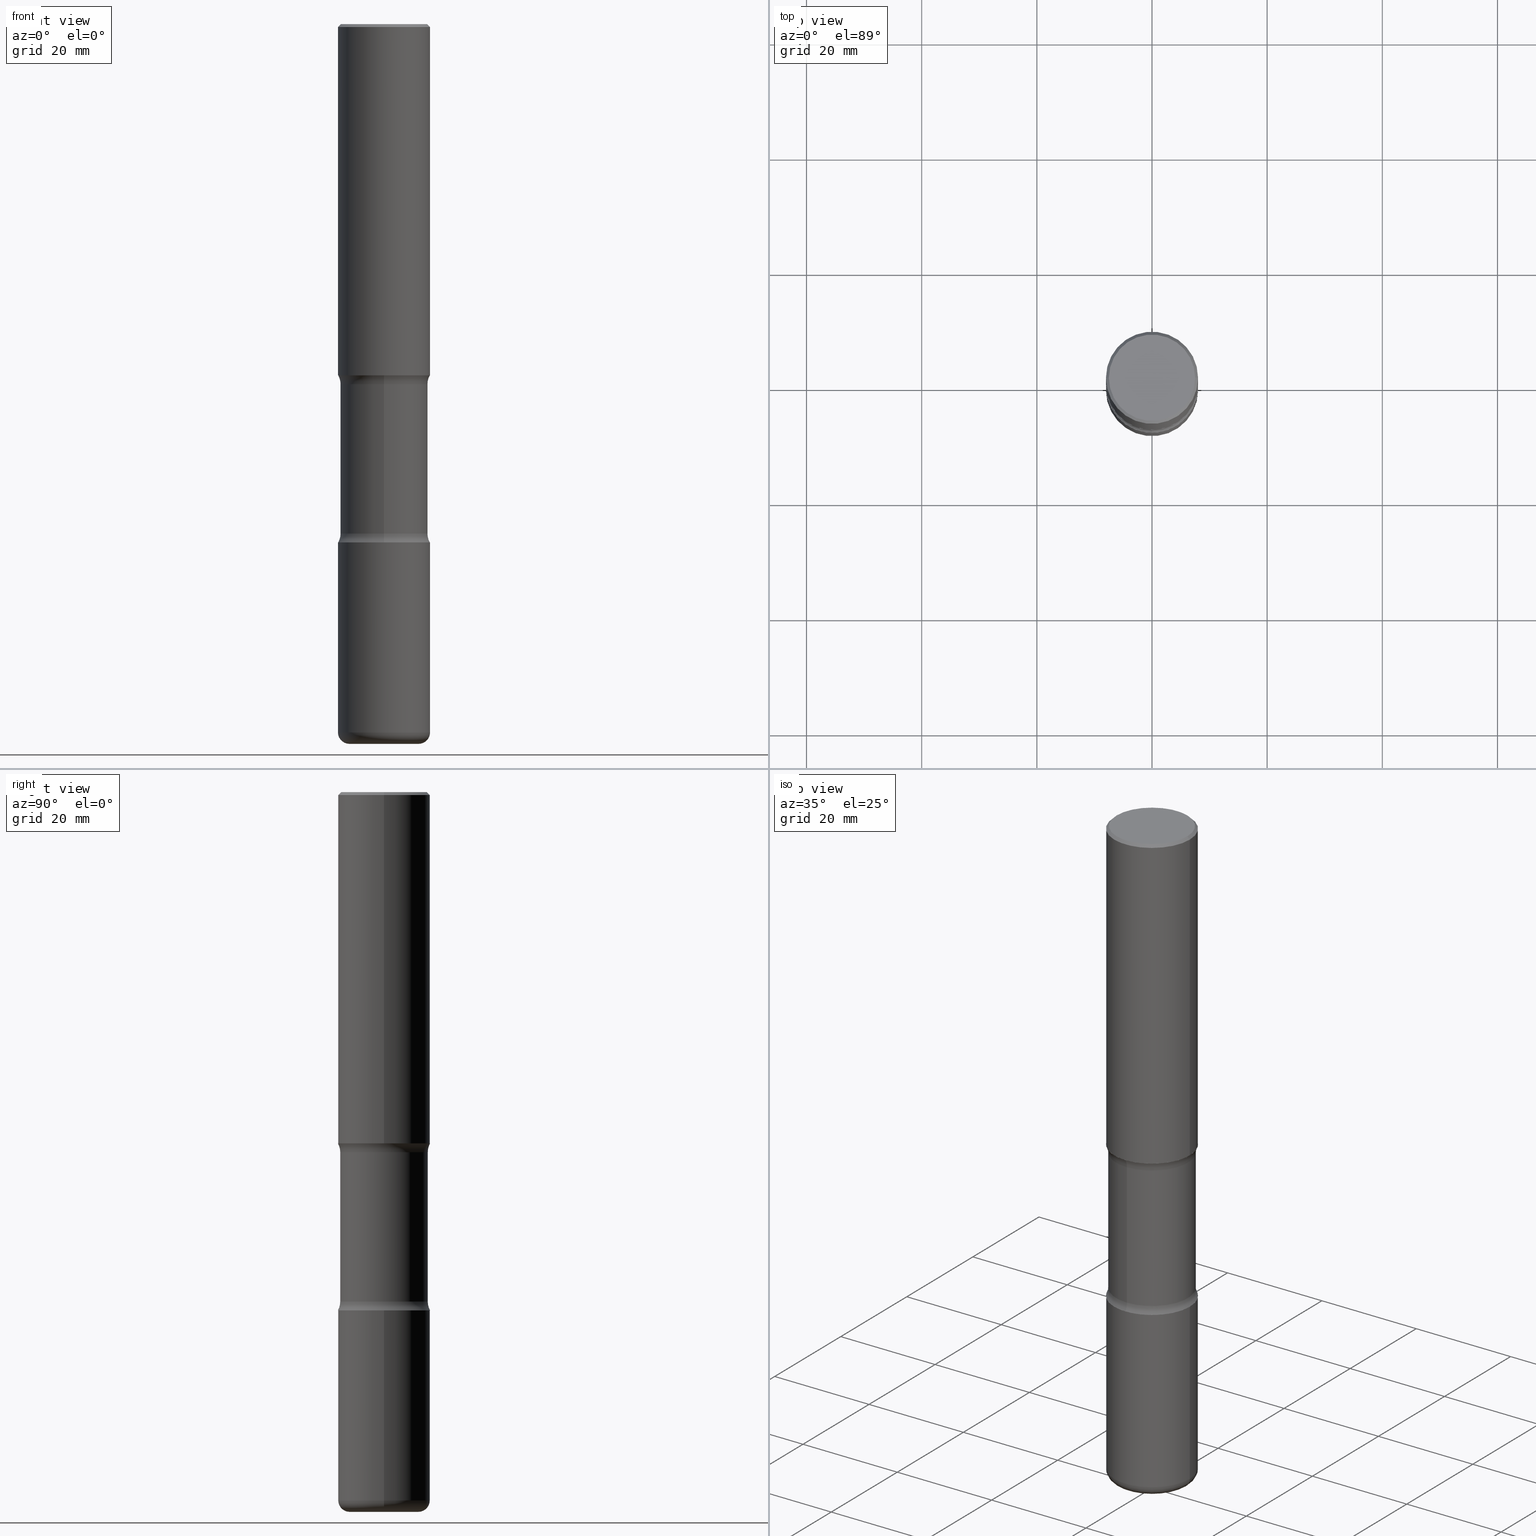
[diagram: canonical four-view strip — front | top / right | iso, engineering-drawing reading convention]
A machine part, canonical four-view strip (front | top / right | iso — engineering-drawing reading convention). The complete STEP part file that produces these views, byte-faithful:
ISO-10303-21;
HEADER;
FILE_DESCRIPTION (( 'STEP AP203' ),
    '1' );
FILE_NAME ('47725.STEP',
    '2024-03-02T07:57:17',
    ( '' ),
    ( '' ),
    'SwSTEP 2.0',
    'SolidWorks 2023',
    '' );
FILE_SCHEMA (( 'CONFIG_CONTROL_DESIGN' ));
ENDSEC;

DATA;
#1 = PLANE ( 'NONE',  #516 ) ;
#2 = APPLICATION_CONTEXT ( 'configuration controlled 3d designs of mechanical parts and assemblies' ) ;
#3 = ADVANCED_FACE ( 'NONE', ( #127 ), #52, .T. ) ;
#4 = DIRECTION ( 'NONE',  ( 1.000000000000000000, -6.982962677686263555E-15, 0.000000000000000000 ) ) ;
#5 = CARTESIAN_POINT ( 'NONE',  ( 2.089302433163816004E-15, 0.2991999999999878646, -3.482559259964997711 ) ) ;
#6 = AXIS2_PLACEMENT_3D ( 'NONE', #296, #164, #14 ) ;
#7 = PERSON_AND_ORGANIZATION ( #487, #180 ) ;
#8 = PRODUCT_DEFINITION_FORMATION_WITH_SPECIFIED_SOURCE ( 'ANY', '', #75, .NOT_KNOWN. ) ;
#9 = DIRECTION ( 'NONE',  ( -1.000000000000000000, 6.982962677686265922E-15, -4.883557194083112340E-29 ) ) ;
#10 = LINE ( 'NONE', #525, #83 ) ;
#11 = MECHANICAL_CONTEXT ( 'NONE', #466, 'mechanical' ) ;
#12 = DIRECTION ( 'NONE',  ( -1.000000000000000000, 6.982962677686265922E-15, -4.876176775795935793E-29 ) ) ;
#13 = CARTESIAN_POINT ( 'NONE',  ( 8.512269027981096619E-29, -1.216533539121887276E-14, -3.482559259964996379 ) ) ;
#14 = DIRECTION ( 'NONE',  ( 6.982962677686265922E-15, 1.000000000000000000, -3.391964546123647133E-15 ) ) ;
#15 = CYLINDRICAL_SURFACE ( 'NONE', #99, 0.3149500000000000077 ) ;
#16 = ORIENTED_EDGE ( 'NONE', *, *, #44, .F. ) ;
#17 = DIRECTION ( 'NONE',  ( 1.000000000000000000, -6.982962677686265922E-15, 0.000000000000000000 ) ) ;
#18 = DIRECTION ( 'NONE',  ( -2.445468806185136597E-29, 3.491481338843145583E-15, 1.000000000000000000 ) ) ;
#19 = CLOSED_SHELL ( 'NONE', ( #293, #133, #130, #349, #271, #450, #444, #334 ) ) ;
#20 = COORDINATED_UNIVERSAL_TIME_OFFSET ( 5, 0, .BEHIND. ) ;
#21 = CIRCLE ( 'NONE', #120, 0.2362500000000004041 ) ;
#22 = CIRCLE ( 'NONE', #112, 0.3149500000000003963 ) ;
#23 = ORIENTED_EDGE ( 'NONE', *, *, #32, .F. ) ;
#24 = VERTEX_POINT ( 'NONE', #338 ) ;
#25 = DIRECTION ( 'NONE',  ( 6.982962677686265922E-15, 1.000000000000000000, -3.391964546123646344E-15 ) ) ;
#26 = PLANE ( 'NONE',  #6 ) ;
#27 = CARTESIAN_POINT ( 'NONE',  ( -0.2362500000000004041, -1.522919031824857024E-14, -4.842599999999999127 ) ) ;
#28 = VERTEX_POINT ( 'NONE', #421 ) ;
#29 = EDGE_LOOP ( 'NONE', ( #117, #406 ) ) ;
#30 = CIRCLE ( 'NONE', #72, 0.3149499999999998967 ) ;
#31 = APPROVAL_PERSON_ORGANIZATION ( #205, #168, #201 ) ;
#32 = EDGE_CURVE ( 'NONE', #259, #24, #490, .T. ) ;
#33 = ORIENTED_EDGE ( 'NONE', *, *, #340, .T. ) ;
#34 = DIRECTION ( 'NONE',  ( 6.982962677686265922E-15, 1.000000000000000000, -3.391964546123646738E-15 ) ) ;
#35 = FACE_OUTER_BOUND ( 'NONE', #544, .T. ) ;
#36 =( CONVERSION_BASED_UNIT ( 'INCH', #85 ) LENGTH_UNIT ( ) NAMED_UNIT ( #382 ) );
#37 = DIRECTION ( 'NONE',  ( 6.982962677686265922E-15, 1.000000000000000000, -3.469564049740290009E-15 ) ) ;
#38 = ADVANCED_FACE ( 'NONE', ( #84 ), #344, .T. ) ;
#39 = VERTEX_POINT ( 'NONE', #386 ) ;
#40 = CARTESIAN_POINT ( 'NONE',  ( 0.000000000000000000, 0.000000000000000000, 0.000000000000000000 ) ) ;
#41 = DIRECTION ( 'NONE',  ( 1.000000000000000000, -6.982962677686265922E-15, 0.000000000000000000 ) ) ;
#42 = TOROIDAL_SURFACE ( 'NONE', #273, 0.4242000000000001325, 0.1250000000000000555 ) ;
#43 = ORIENTED_EDGE ( 'NONE', *, *, #202, .T. ) ;
#44 = EDGE_CURVE ( 'NONE', #63, #159, #513, .T. ) ;
#45 = ORIENTED_EDGE ( 'NONE', *, *, #436, .F. ) ;
#46 = EDGE_CURVE ( 'NONE', #24, #259, #149, .T. ) ;
#47 = CIRCLE ( 'NONE', #454, 0.07869999999999993667 ) ;
#48 = ADVANCED_FACE ( 'NONE', ( #416 ), #80, .T. ) ;
#49 = APPROVAL_DATE_TIME ( #497, #404 ) ;
#50 = PLANE ( 'NONE',  #97 ) ;
#51 = CARTESIAN_POINT ( 'NONE',  ( 0.3149500000000000077, -2.199284095337289871E-15, 1.535751875536930130E-29 ) ) ;
#52 = TOROIDAL_SURFACE ( 'NONE', #177, 0.2362500000000004041, 0.07869999999999995055 ) ;
#53 = AXIS2_PLACEMENT_3D ( 'NONE', #494, #59, #17 ) ;
#54 = CARTESIAN_POINT ( 'NONE',  ( 8.665029620955796311E-29, -1.237136582792292023E-14, -3.543300000000000782 ) ) ;
#55 = DIRECTION ( 'NONE',  ( -2.445468806185136877E-29, 3.491481338843145188E-15, 1.000000000000000000 ) ) ;
#56 = CARTESIAN_POINT ( 'NONE',  ( 4.382515892543954425E-28, 2.834285362779013040E-14, -4.921299999999999564 ) ) ;
#57 = VERTEX_POINT ( 'NONE', #185 ) ;
#58 = EDGE_CURVE ( 'NONE', #261, #341, #138, .T. ) ;
#59 = DIRECTION ( 'NONE',  ( -2.445468806185136597E-29, 3.491481338843145583E-15, 1.000000000000000000 ) ) ;
#60 = CARTESIAN_POINT ( 'NONE',  ( 8.516490035935592115E-29, -1.215929066758317818E-14, -3.482559259964995935 ) ) ;
#61 = APPROVAL_ROLE ( '' ) ;
#62 = AXIS2_PLACEMENT_3D ( 'NONE', #555, #131, #167 ) ;
#63 = VERTEX_POINT ( 'NONE', #108 ) ;
#64 = EDGE_CURVE ( 'NONE', #426, #372, #265, .T. ) ;
#65 = ORIENTED_EDGE ( 'NONE', *, *, #354, .T. ) ;
#66 = CARTESIAN_POINT ( 'NONE',  ( 8.665029620955796311E-29, -1.237136582792292023E-14, -3.543300000000000782 ) ) ;
#67 = DIRECTION ( 'NONE',  ( 7.105427357601001859E-15, 1.000000000000000000, -3.491481338843145583E-15 ) ) ;
#68 = DIRECTION ( 'NONE',  ( 6.860497997771530774E-15, 1.000000000000000000, 0.000000000000000000 ) ) ;
#69 = DIRECTION ( 'NONE',  ( -1.000000000000000000, 7.105427357600997914E-15, 0.000000000000000000 ) ) ;
#70 = ORIENTED_EDGE ( 'NONE', *, *, #305, .F. ) ;
#71 = CARTESIAN_POINT ( 'NONE',  ( -2.910223250654624775E-15, -0.4242000000000089033, -2.462340740035003694 ) ) ;
#72 = AXIS2_PLACEMENT_3D ( 'NONE', #337, #427, #41 ) ;
#73 = LOCAL_TIME ( 2, 57, 17.00000000000000000, #98 ) ;
#74 = EDGE_CURVE ( 'NONE', #533, #57, #292, .T. ) ;
#75 = PRODUCT ( '47725', '47725', '', ( #11 ) ) ;
#76 = ORIENTED_EDGE ( 'NONE', *, *, #142, .F. ) ;
#77 = ORIENTED_EDGE ( 'NONE', *, *, #363, .T. ) ;
#78 = EDGE_CURVE ( 'NONE', #124, #159, #350, .T. ) ;
#79 = CARTESIAN_POINT ( 'NONE',  ( 8.665029620955796311E-29, -1.237136582792292023E-14, -3.543300000000000782 ) ) ;
#80 = CYLINDRICAL_SURFACE ( 'NONE', #291, 0.3149500000000003408 ) ;
#81 = ORIENTED_EDGE ( 'NONE', *, *, #311, .F. ) ;
#82 = DIRECTION ( 'NONE',  ( -2.445468806185136597E-29, 3.491481338843145583E-15, 1.000000000000000000 ) ) ;
#83 = VECTOR ( 'NONE', #143, 39.37007874015748143 ) ;
#84 = FACE_OUTER_BOUND ( 'NONE', #333, .T. ) ;
#85 = LENGTH_MEASURE_WITH_UNIT ( LENGTH_MEASURE( 0.02539999999999999897 ), #299 );
#86 = DIRECTION ( 'NONE',  ( -2.438088387897960049E-29, 3.491481338843145188E-15, 1.000000000000000000 ) ) ;
#87 = ADVANCED_BREP_SHAPE_REPRESENTATION ( '47725', ( #456, #288, #89, #222 ), #343 ) ;
#88 = VERTEX_POINT ( 'NONE', #276 ) ;
#89 = MANIFOLD_SOLID_BREP ( 'Body-Move/Copy2[4]', #19 ) ;
#90 = EDGE_CURVE ( 'NONE', #259, #542, #395, .T. ) ;
#91 = AXIS2_PLACEMENT_3D ( 'NONE', #66, #204, #286 ) ;
#92 = DIRECTION ( 'NONE',  ( 1.000000000000000000, -6.982962677686265922E-15, 0.000000000000000000 ) ) ;
#93 = CARTESIAN_POINT ( 'NONE',  ( -2.052661000933121010E-15, -0.2992000000000170634, -4.921299999999999564 ) ) ;
#94 = DIRECTION ( 'NONE',  ( 2.514961011121466661E-29, -3.391964546123646738E-15, -1.000000000000000000 ) ) ;
#95 = DIRECTION ( 'NONE',  ( -2.445468806185136597E-29, 3.491481338843145583E-15, 1.000000000000000000 ) ) ;
#96 = DIRECTION ( 'NONE',  ( -6.982962677686265922E-15, -1.000000000000000000, 3.391964546123647133E-15 ) ) ;
#97 = AXIS2_PLACEMENT_3D ( 'NONE', #476, #269, #433 ) ;
#98 = COORDINATED_UNIVERSAL_TIME_OFFSET ( 5, 0, .BEHIND. ) ;
#99 = AXIS2_PLACEMENT_3D ( 'NONE', #495, #18, #287 ) ;
#100 = ADVANCED_FACE ( 'NONE', ( #357 ), #1, .F. ) ;
#101 = ORIENTED_EDGE ( 'NONE', *, *, #78, .T. ) ;
#102 = CARTESIAN_POINT ( 'NONE',  ( -2.106687422665607929E-15, -0.2992000000000121784, -3.482559259964995491 ) ) ;
#103 = APPROVAL_STATUS ( 'not_yet_approved' ) ;
#104 = VERTEX_POINT ( 'NONE', #554 ) ;
#105 = DIRECTION ( 'NONE',  ( -2.445468806185136597E-29, 3.491481338843145583E-15, 1.000000000000000000 ) ) ;
#106 = EDGE_LOOP ( 'NONE', ( #510, #70 ) ) ;
#107 = ADVANCED_FACE ( 'NONE', ( #182 ), #50, .F. ) ;
#108 = CARTESIAN_POINT ( 'NONE',  ( -0.3149500000000001743, -1.989631258794842718E-15, -2.401600000000000623 ) ) ;
#109 = DIRECTION ( 'NONE',  ( 2.514961011121466661E-29, -3.391964546123646738E-15, -1.000000000000000000 ) ) ;
#110 = PERSON_AND_ORGANIZATION_ROLE ( 'design_supplier' ) ;
#111 = AXIS2_PLACEMENT_3D ( 'NONE', #54, #239, #37 ) ;
#112 = AXIS2_PLACEMENT_3D ( 'NONE', #235, #94, #280 ) ;
#113 = ORIENTED_EDGE ( 'NONE', *, *, #504, .F. ) ;
#114 = FACE_OUTER_BOUND ( 'NONE', #413, .T. ) ;
#115 = EDGE_LOOP ( 'NONE', ( #449, #500, #380, #289 ) ) ;
#116 = CARTESIAN_POINT ( 'NONE',  ( 0.2362500000000004041, -1.855757246408519851E-14, -4.842599999999999127 ) ) ;
#117 = ORIENTED_EDGE ( 'NONE', *, *, #504, .T. ) ;
#118 = CARTESIAN_POINT ( 'NONE',  ( 4.890937612370289799E-31, -6.982962677686315028E-17, -0.02000000000000006981 ) ) ;
#119 = DESIGN_CONTEXT ( 'detailed design', #2, 'design' ) ;
#120 = AXIS2_PLACEMENT_3D ( 'NONE', #331, #105, #215 ) ;
#121 = ORIENTED_EDGE ( 'NONE', *, *, #346, .F. ) ;
#122 = DIRECTION ( 'NONE',  ( -2.445468806185136597E-29, 3.491481338843145583E-15, 1.000000000000000000 ) ) ;
#123 = ADVANCED_FACE ( 'NONE', ( #352 ), #227, .T. ) ;
#124 = VERTEX_POINT ( 'NONE', #460 ) ;
#125 = CARTESIAN_POINT ( 'NONE',  ( 1.184242724083213993E-28, -1.690784753148181059E-14, -4.842599999999999127 ) ) ;
#126 = CARTESIAN_POINT ( 'NONE',  ( -2.106687422665635539E-15, -0.2992000000000087367, -2.462340740035004139 ) ) ;
#127 = FACE_OUTER_BOUND ( 'NONE', #174, .T. ) ;
#128 = AXIS2_PLACEMENT_3D ( 'NONE', #479, #178, #274 ) ;
#129 = AXIS2_PLACEMENT_3D ( 'NONE', #60, #155, #25 ) ;
#130 = ADVANCED_FACE ( 'NONE', ( #339 ), #42, .F. ) ;
#131 = DIRECTION ( 'NONE',  ( 2.445468806185136597E-29, -3.491481338843145583E-15, -1.000000000000000000 ) ) ;
#132 = DIRECTION ( 'NONE',  ( 2.514961011121466661E-29, -3.391964546123646738E-15, -1.000000000000000000 ) ) ;
#133 = ADVANCED_FACE ( 'NONE', ( #551 ), #393, .F. ) ;
#134 = CARTESIAN_POINT ( 'NONE',  ( 2.962172767874574494E-15, 0.4241999999999914173, -2.462340740035007247 ) ) ;
#135 = FACE_OUTER_BOUND ( 'NONE', #473, .T. ) ;
#136 = AXIS2_PLACEMENT_3D ( 'NONE', #40, #300, #221 ) ;
#137 = AXIS2_PLACEMENT_3D ( 'NONE', #71, #214, #508 ) ;
#138 = CIRCLE ( 'NONE', #91, 0.3149500000000002853 ) ;
#139 = PRODUCT_DEFINITION_SHAPE ( 'NONE', 'NONE',  #156 ) ;
#140 = DIRECTION ( 'NONE',  ( 2.514961011121466661E-29, -3.391964546123646738E-15, -1.000000000000000000 ) ) ;
#141 = DIRECTION ( 'NONE',  ( 1.000000000000000000, 0.000000000000000000, 0.000000000000000000 ) ) ;
#142 = EDGE_CURVE ( 'NONE', #426, #28, #47, .T. ) ;
#143 = DIRECTION ( 'NONE',  ( -2.445468806185136877E-29, 3.491481338843145188E-15, 1.000000000000000000 ) ) ;
#144 = EDGE_CURVE ( 'NONE', #246, #28, #160, .T. ) ;
#145 = DATE_TIME_ROLE ( 'classification_date' ) ;
#146 = ORIENTED_EDGE ( 'NONE', *, *, #228, .F. ) ;
#147 = DIRECTION ( 'NONE',  ( 6.982962677686265922E-15, 1.000000000000000000, -3.652203200085913145E-15 ) ) ;
#148 = DIRECTION ( 'NONE',  ( 2.514961011121466661E-29, -3.391964546123646738E-15, -1.000000000000000000 ) ) ;
#149 = CIRCLE ( 'NONE', #519, 0.2992000000000000215 ) ;
#150 = CIRCLE ( 'NONE', #549, 0.1250000000000001943 ) ;
#151 = CC_DESIGN_APPROVAL ( #404, ( #189 ) ) ;
#152 = ORIENTED_EDGE ( 'NONE', *, *, #423, .T. ) ;
#153 = DIRECTION ( 'NONE',  ( -2.445468806185136597E-29, 3.491481338843145583E-15, 1.000000000000000000 ) ) ;
#154 = ORIENTED_EDGE ( 'NONE', *, *, #165, .T. ) ;
#155 = DIRECTION ( 'NONE',  ( 2.514961011121466661E-29, -3.391964546123646738E-15, -1.000000000000000000 ) ) ;
#156 = PRODUCT_DEFINITION ( 'UNKNOWN', '', #8, #119 ) ;
#157 = APPROVAL_DATE_TIME ( #294, #430 ) ;
#158 = UNCERTAINTY_MEASURE_WITH_UNIT (LENGTH_MEASURE( 1.000000000000000082E-05 ), #36, 'distance_accuracy_value', 'NONE');
#159 = VERTEX_POINT ( 'NONE', #307 ) ;
#160 = CIRCLE ( 'NONE', #312, 0.3149500000000003963 ) ;
#161 = APPROVAL_PERSON_ORGANIZATION ( #332, #404, #281 ) ;
#162 = ORIENTED_EDGE ( 'NONE', *, *, #165, .F. ) ;
#163 = CARTESIAN_POINT ( 'NONE',  ( 8.665029620955796311E-29, -1.237136582792292023E-14, -3.543300000000000782 ) ) ;
#164 = DIRECTION ( 'NONE',  ( 2.514961011121466101E-29, -3.391964546123647133E-15, -1.000000000000000000 ) ) ;
#165 = EDGE_CURVE ( 'NONE', #341, #542, #150, .T. ) ;
#166 = DIRECTION ( 'NONE',  ( 1.000000000000000000, -6.982962677686268288E-15, 4.883557194083114022E-29 ) ) ;
#167 = DIRECTION ( 'NONE',  ( -1.000000000000000000, 6.982962677686265922E-15, 0.000000000000000000 ) ) ;
#168 = APPROVAL ( #326, 'UNSPECIFIED' ) ;
#169 = ORIENTED_EDGE ( 'NONE', *, *, #175, .F. ) ;
#170 = AXIS2_PLACEMENT_3D ( 'NONE', #347, #86, #545 ) ;
#171 = DIRECTION ( 'NONE',  ( -2.445468806185136597E-29, 3.491481338843145583E-15, 1.000000000000000000 ) ) ;
#172 = CARTESIAN_POINT ( 'NONE',  ( 5.926195507050082324E-29, -8.733809143388656122E-15, -2.462340740035005471 ) ) ;
#173 = CC_DESIGN_APPROVAL ( #430, ( #8 ) ) ;
#174 = EDGE_LOOP ( 'NONE', ( #253, #304, #121, #76 ) ) ;
#175 = EDGE_CURVE ( 'NONE', #507, #124, #373, .T. ) ;
#176 = DIRECTION ( 'NONE',  ( -2.445468806185136597E-29, 3.491481338843145583E-15, 1.000000000000000000 ) ) ;
#177 = AXIS2_PLACEMENT_3D ( 'NONE', #383, #171, #166 ) ;
#178 = DIRECTION ( 'NONE',  ( -2.445468806185136597E-29, 3.491481338843145583E-15, 1.000000000000000000 ) ) ;
#179 = CIRCLE ( 'NONE', #257, 0.1250000000000000555 ) ;
#180 = ORGANIZATION ( 'UNSPECIFIED', 'UNSPECIFIED', '' ) ;
#181 = ADVANCED_FACE ( 'NONE', ( #543 ), #399, .T. ) ;
#182 = FACE_OUTER_BOUND ( 'NONE', #459, .T. ) ;
#183 = DIRECTION ( 'NONE',  ( 6.982962677686265922E-15, 1.000000000000000000, -3.391964546123646738E-15 ) ) ;
#184 = FACE_OUTER_BOUND ( 'NONE', #290, .T. ) ;
#185 = CARTESIAN_POINT ( 'NONE',  ( 0.3149500000000002853, -1.457064992326021168E-14, -3.543300000000000782 ) ) ;
#186 = CARTESIAN_POINT ( 'NONE',  ( 5.926195507050082324E-29, -8.733809143388656122E-15, -2.462340740035005471 ) ) ;
#187 = EDGE_CURVE ( 'NONE', #57, #533, #491, .T. ) ;
#188 = AXIS2_PLACEMENT_3D ( 'NONE', #317, #348, #92 ) ;
#189 = SECURITY_CLASSIFICATION ( '', '', #527 ) ;
#190 = CALENDAR_DATE ( 2024, 2, 3 ) ;
#191 = DIRECTION ( 'NONE',  ( -6.982962677686267499E-15, -1.000000000000000000, 0.000000000000000000 ) ) ;
#192 = CARTESIAN_POINT ( 'NONE',  ( 0.2362500000000004041, -1.883235204545215185E-14, -4.921299999999998676 ) ) ;
#193 = EDGE_CURVE ( 'NONE', #159, #124, #30, .T. ) ;
#194 = EDGE_LOOP ( 'NONE', ( #45, #550, #65, #538 ) ) ;
#195 = CYLINDRICAL_SURFACE ( 'NONE', #419, 0.2992000000000000215 ) ;
#196 = DIRECTION ( 'NONE',  ( 1.000000000000000000, -6.982962677686267499E-15, 4.876176775795936353E-29 ) ) ;
#197 = CALENDAR_DATE ( 2024, 2, 3 ) ;
#198 = ORIENTED_EDGE ( 'NONE', *, *, #187, .F. ) ;
#199 = AXIS2_PLACEMENT_3D ( 'NONE', #186, #272, #183 ) ;
#200 = AXIS2_PLACEMENT_3D ( 'NONE', #27, #67, #69 ) ;
#201 = APPROVAL_ROLE ( '' ) ;
#202 = EDGE_CURVE ( 'NONE', #259, #39, #501, .T. ) ;
#203 = ORIENTED_EDGE ( 'NONE', *, *, #354, .F. ) ;
#204 = DIRECTION ( 'NONE',  ( 2.514961011121466661E-29, -3.391964546123646738E-15, -1.000000000000000000 ) ) ;
#205 = PERSON_AND_ORGANIZATION ( #487, #180 ) ;
#206 = ORIENTED_EDGE ( 'NONE', *, *, #193, .T. ) ;
#207 = ORIENTED_EDGE ( 'NONE', *, *, #233, .T. ) ;
#208 = CARTESIAN_POINT ( 'NONE',  ( -2.910223250654599532E-15, -0.4242000000000124005, -3.482559259964994158 ) ) ;
#209 = EDGE_CURVE ( 'NONE', #261, #322, #520, .T. ) ;
#210 = VECTOR ( 'NONE', #518, 39.37007874015748143 ) ;
#211 = ORIENTED_EDGE ( 'NONE', *, *, #463, .F. ) ;
#212 = EDGE_CURVE ( 'NONE', #341, #261, #532, .T. ) ;
#213 = ORIENTED_EDGE ( 'NONE', *, *, #74, .T. ) ;
#214 = DIRECTION ( 'NONE',  ( 1.000000000000000000, -6.860497997771530774E-15, 4.842017608840796657E-29 ) ) ;
#215 = DIRECTION ( 'NONE',  ( 1.000000000000000000, -6.982962677686265922E-15, 0.000000000000000000 ) ) ;
#216 = CARTESIAN_POINT ( 'NONE',  ( 0.000000000000000000, 0.000000000000000000, 0.000000000000000000 ) ) ;
#217 = APPLICATION_PROTOCOL_DEFINITION ( 'international standard', 'config_control_design', 1994, #466 ) ;
#218 = CLOSED_SHELL ( 'NONE', ( #517, #3, #524, #262, #48, #107 ) ) ;
#219 = CC_DESIGN_PERSON_AND_ORGANIZATION_ASSIGNMENT ( #448, #534, ( #156 ) ) ;
#220 = AXIS2_PLACEMENT_3D ( 'NONE', #79, #176, #4 ) ;
#221 = DIRECTION ( 'NONE',  ( 1.000000000000000000, -6.982962677686266711E-15, 4.876176775795936353E-29 ) ) ;
#222 = AXIS2_PLACEMENT_3D ( 'NONE', #308, #388, #141 ) ;
#223 = DIRECTION ( 'NONE',  ( -2.445468806185136597E-29, 3.491481338843145583E-15, 1.000000000000000000 ) ) ;
#224 = DIRECTION ( 'NONE',  ( 6.982962677686265922E-15, 1.000000000000000000, -3.652203200085913145E-15 ) ) ;
#225 = CARTESIAN_POINT ( 'NONE',  ( -0.3149500000000002853, -1.240175233342592784E-14, -3.543300000000000782 ) ) ;
#226 = DIRECTION ( 'NONE',  ( 6.982962677686265922E-15, 1.000000000000000000, -3.652203200085913145E-15 ) ) ;
#227 = CONICAL_SURFACE ( 'NONE', #62, 0.3149499999999998967, 0.7853981633974460586 ) ;
#228 = EDGE_CURVE ( 'NONE', #507, #377, #437, .T. ) ;
#229 = PERSON_AND_ORGANIZATION ( #487, #180 ) ;
#230 = CARTESIAN_POINT ( 'NONE',  ( 1.213064589428117588E-28, -1.704549297248130466E-14, -4.921300000000000452 ) ) ;
#231 = COORDINATED_UNIVERSAL_TIME_OFFSET ( 5, 0, .BEHIND. ) ;
#232 = CARTESIAN_POINT ( 'NONE',  ( 2.962172767874600526E-15, 0.4241999999999880866, -3.482559259964997711 ) ) ;
#233 = EDGE_CURVE ( 'NONE', #24, #322, #309, .T. ) ;
#234 = ORIENTED_EDGE ( 'NONE', *, *, #546, .F. ) ;
#235 = CARTESIAN_POINT ( 'NONE',  ( 5.793698634558417209E-29, -8.498759905613550858E-15, -2.401600000000000623 ) ) ;
#236 = AXIS2_PLACEMENT_3D ( 'NONE', #163, #122, #301 ) ;
#237 = TOROIDAL_SURFACE ( 'NONE', #129, 0.4242000000000002435, 0.1250000000000001943 ) ;
#238 = PERSON_AND_ORGANIZATION ( #487, #180 ) ;
#239 = DIRECTION ( 'NONE',  ( 2.514961011121466661E-29, -3.391964546123646738E-15, -1.000000000000000000 ) ) ;
#240 = DIRECTION ( 'NONE',  ( 2.438088387897960049E-29, -3.491481338843145188E-15, -1.000000000000000000 ) ) ;
#241 = CALENDAR_DATE ( 2024, 2, 3 ) ;
#242 = ORIENTED_EDGE ( 'NONE', *, *, #175, .T. ) ;
#243 = ADVANCED_FACE ( 'NONE', ( #260 ), #552, .F. ) ;
#244 = PLANE ( 'NONE',  #275 ) ;
#245 = COORDINATED_UNIVERSAL_TIME_OFFSET ( 5, 0, .BEHIND. ) ;
#246 = VERTEX_POINT ( 'NONE', #514 ) ;
#247 = DIRECTION ( 'NONE',  ( -2.445468806185136597E-29, 3.491481338843145583E-15, 1.000000000000000000 ) ) ;
#248 = VECTOR ( 'NONE', #477, 39.37007874015748143 ) ;
#249 = CC_DESIGN_SECURITY_CLASSIFICATION ( #189, ( #8 ) ) ;
#250 = DATE_TIME_ROLE ( 'creation_date' ) ;
#251 = ORIENTED_EDGE ( 'NONE', *, *, #412, .T. ) ;
#252 = DIRECTION ( 'NONE',  ( 6.982962677686265922E-15, 1.000000000000000000, -3.652203200085913145E-15 ) ) ;
#253 = ORIENTED_EDGE ( 'NONE', *, *, #64, .T. ) ;
#254 = ORIENTED_EDGE ( 'NONE', *, *, #58, .F. ) ;
#255 = DIRECTION ( 'NONE',  ( -1.000000000000000000, 6.982962677686265922E-15, 0.000000000000000000 ) ) ;
#256 = CC_DESIGN_PERSON_AND_ORGANIZATION_ASSIGNMENT ( #411, #536, ( #189 ) ) ;
#257 = AXIS2_PLACEMENT_3D ( 'NONE', #134, #314, #480 ) ;
#258 = APPROVAL_PERSON_ORGANIZATION ( #499, #430, #61 ) ;
#259 = VERTEX_POINT ( 'NONE', #126 ) ;
#260 = FACE_OUTER_BOUND ( 'NONE', #106, .T. ) ;
#261 = VERTEX_POINT ( 'NONE', #434 ) ;
#262 = ADVANCED_FACE ( 'NONE', ( #310 ), #282, .T. ) ;
#263 = EDGE_LOOP ( 'NONE', ( #467, #432, #528, #366 ) ) ;
#264 = DIRECTION ( 'NONE',  ( 2.445468806185136597E-29, -3.491481338843145583E-15, -1.000000000000000000 ) ) ;
#265 = CIRCLE ( 'NONE', #481, 0.2362500000000004041 ) ;
#266 = DIRECTION ( 'NONE',  ( 2.514961011121466661E-29, -3.391964546123646738E-15, -1.000000000000000000 ) ) ;
#267 = ORIENTED_EDGE ( 'NONE', *, *, #363, .F. ) ;
#268 = DIRECTION ( 'NONE',  ( 1.000000000000000000, -6.982962677686267499E-15, 4.876176775795936353E-29 ) ) ;
#269 = DIRECTION ( 'NONE',  ( 2.438088387897960049E-29, -3.491481338843145188E-15, -1.000000000000000000 ) ) ;
#270 = DIRECTION ( 'NONE',  ( 1.000000000000000000, -6.982962677686267499E-15, 4.876053491004736589E-29 ) ) ;
#271 = ADVANCED_FACE ( 'NONE', ( #114 ), #26, .F. ) ;
#272 = DIRECTION ( 'NONE',  ( 2.514961011121466661E-29, -3.391964546123646738E-15, -1.000000000000000000 ) ) ;
#273 = AXIS2_PLACEMENT_3D ( 'NONE', #172, #387, #34 ) ;
#274 = DIRECTION ( 'NONE',  ( 1.000000000000000000, -6.982962677686267499E-15, 0.000000000000000000 ) ) ;
#275 = AXIS2_PLACEMENT_3D ( 'NONE', #56, #240, #12 ) ;
#276 = CARTESIAN_POINT ( 'NONE',  ( 2.199284095337349824E-15, 0.3149499999999919031, -2.401600000000001511 ) ) ;
#277 = CYLINDRICAL_SURFACE ( 'NONE', #375, 0.2992000000000000215 ) ;
#278 = PRODUCT_RELATED_PRODUCT_CATEGORY ( 'detail', '', ( #75 ) ) ;
#279 = CARTESIAN_POINT ( 'NONE',  ( 2.059624841783563274E-15, 0.2949499999999998789, -1.023409652156634744E-15 ) ) ;
#280 = DIRECTION ( 'NONE',  ( 6.982962677686265922E-15, 1.000000000000000000, -3.469564049740288825E-15 ) ) ;
#281 = APPROVAL_ROLE ( '' ) ;
#282 = TOROIDAL_SURFACE ( 'NONE', #365, 0.2362500000000004041, 0.07869999999999995055 ) ;
#283 = CC_DESIGN_APPROVAL ( #168, ( #156 ) ) ;
#284 = DATE_AND_TIME ( #241, #394 ) ;
#285 = ORIENTED_EDGE ( 'NONE', *, *, #463, .T. ) ;
#286 = DIRECTION ( 'NONE',  ( 6.982962677686265922E-15, 1.000000000000000000, -3.469564049740290009E-15 ) ) ;
#287 = DIRECTION ( 'NONE',  ( 1.000000000000000000, -6.982962677686266711E-15, 4.876176775795936353E-29 ) ) ;
#288 = MANIFOLD_SOLID_BREP ( 'Body-Move/Copy2[2]', #323 ) ;
#289 = ORIENTED_EDGE ( 'NONE', *, *, #144, .F. ) ;
#290 = EDGE_LOOP ( 'NONE', ( #553, #441, #77, #251 ) ) ;
#291 = AXIS2_PLACEMENT_3D ( 'NONE', #484, #95, #196 ) ;
#292 = CIRCLE ( 'NONE', #220, 0.3149500000000002853 ) ;
#293 = ADVANCED_FACE ( 'NONE', ( #329 ), #195, .T. ) ;
#294 = DATE_AND_TIME ( #190, #521 ) ;
#295 = ORIENTED_EDGE ( 'NONE', *, *, #340, .F. ) ;
#296 = CARTESIAN_POINT ( 'NONE',  ( 5.873037884934225470E-29, -8.385141583365698841E-15, -2.401600000000000623 ) ) ;
#297 = DIRECTION ( 'NONE',  ( 1.000000000000000000, -6.982962677686267499E-15, 0.000000000000000000 ) ) ;
#298 = CARTESIAN_POINT ( 'NONE',  ( 1.184242724083213993E-28, -1.690784753148181059E-14, -4.842599999999999127 ) ) ;
#299 =( LENGTH_UNIT ( ) NAMED_UNIT ( * ) SI_UNIT ( $, .METRE. ) );
#300 = DIRECTION ( 'NONE',  ( -2.445468806185136597E-29, 3.491481338843145583E-15, 1.000000000000000000 ) ) ;
#301 = DIRECTION ( 'NONE',  ( 1.000000000000000000, -6.982962677686263555E-15, 0.000000000000000000 ) ) ;
#302 = AXIS2_PLACEMENT_3D ( 'NONE', #468, #378, #548 ) ;
#303 = CIRCLE ( 'NONE', #420, 0.2992000000000000215 ) ;
#304 = ORIENTED_EDGE ( 'NONE', *, *, #558, .T. ) ;
#305 = EDGE_CURVE ( 'NONE', #63, #104, #541, .T. ) ;
#306 = EDGE_LOOP ( 'NONE', ( #505, #154, #360, #330 ) ) ;
#307 = CARTESIAN_POINT ( 'NONE',  ( -0.3149499999999998967, 2.129454468560425784E-15, -0.02000000000000006981 ) ) ;
#308 = CARTESIAN_POINT ( 'NONE',  ( 0.000000000000000000, 0.000000000000000000, 0.000000000000000000 ) ) ;
#309 = LINE ( 'NONE', #389, #248 ) ;
#310 = FACE_OUTER_BOUND ( 'NONE', #115, .T. ) ;
#311 = EDGE_CURVE ( 'NONE', #372, #426, #21, .T. ) ;
#312 = AXIS2_PLACEMENT_3D ( 'NONE', #125, #462, #297 ) ;
#313 = CARTESIAN_POINT ( 'NONE',  ( 5.946459227533120264E-29, -8.704790342317601483E-15, -2.462340740035005471 ) ) ;
#314 = DIRECTION ( 'NONE',  ( -1.000000000000000000, 6.982962677686265922E-15, -4.883557194083112340E-29 ) ) ;
#315 = AXIS2_PLACEMENT_3D ( 'NONE', #355, #397, #392 ) ;
#316 = DIRECTION ( 'NONE',  ( 1.000000000000000000, -6.982962677686265922E-15, 0.000000000000000000 ) ) ;
#317 = CARTESIAN_POINT ( 'NONE',  ( 4.890937612370289799E-31, -6.982962677686315028E-17, -0.02000000000000006981 ) ) ;
#318 = CC_DESIGN_DATE_AND_TIME_ASSIGNMENT ( #368, #250, ( #156 ) ) ;
#319 = DIRECTION ( 'NONE',  ( 6.982962677686265922E-15, 1.000000000000000000, -3.469564049740288825E-15 ) ) ;
#320 = APPLICATION_PROTOCOL_DEFINITION ( 'international standard', 'config_control_design', 1994, #2 ) ;
#321 = ORIENTED_EDGE ( 'NONE', *, *, #436, .T. ) ;
#322 = VERTEX_POINT ( 'NONE', #5 ) ;
#323 = CLOSED_SHELL ( 'NONE', ( #531, #123, #181, #100, #243, #38 ) ) ;
#324 = AXIS2_PLACEMENT_3D ( 'NONE', #523, #140, #319 ) ;
#325 = DIRECTION ( 'NONE',  ( 6.982962677686265922E-15, 1.000000000000000000, -3.652203200085913145E-15 ) ) ;
#326 = APPROVAL_STATUS ( 'not_yet_approved' ) ;
#327 = EDGE_CURVE ( 'NONE', #104, #63, #335, .T. ) ;
#328 = ORIENTED_EDGE ( 'NONE', *, *, #32, .T. ) ;
#329 = FACE_OUTER_BOUND ( 'NONE', #496, .T. ) ;
#330 = ORIENTED_EDGE ( 'NONE', *, *, #209, .F. ) ;
#331 = CARTESIAN_POINT ( 'NONE',  ( 1.203488563587890921E-28, -1.718262711284876708E-14, -4.921299999999998676 ) ) ;
#332 = PERSON_AND_ORGANIZATION ( #487, #180 ) ;
#333 = EDGE_LOOP ( 'NONE', ( #16, #369, #152, #390 ) ) ;
#334 = ADVANCED_FACE ( 'NONE', ( #135 ), #277, .T. ) ;
#335 = CIRCLE ( 'NONE', #315, 0.3149500000000001743 ) ;
#336 = LOCAL_TIME ( 2, 57, 17.00000000000000000, #405 ) ;
#337 = CARTESIAN_POINT ( 'NONE',  ( 4.890937612370289799E-31, -6.982962677686315028E-17, -0.02000000000000006981 ) ) ;
#338 = CARTESIAN_POINT ( 'NONE',  ( 2.089302433163790366E-15, 0.2991999999999913062, -2.462340740035006359 ) ) ;
#339 = FACE_OUTER_BOUND ( 'NONE', #345, .T. ) ;
#340 = EDGE_CURVE ( 'NONE', #377, #159, #556, .T. ) ;
#341 = VERTEX_POINT ( 'NONE', #353 ) ;
#342 = AXIS2_PLACEMENT_3D ( 'NONE', #469, #223, #270 ) ;
#343 =( GEOMETRIC_REPRESENTATION_CONTEXT ( 3 ) GLOBAL_UNCERTAINTY_ASSIGNED_CONTEXT ( ( #158 ) ) GLOBAL_UNIT_ASSIGNED_CONTEXT ( ( #36, #465, #381 ) ) REPRESENTATION_CONTEXT ( 'NONE', 'WORKASPACE' ) );
#344 = CYLINDRICAL_SURFACE ( 'NONE', #136, 0.3149500000000000077 ) ;
#345 = EDGE_LOOP ( 'NONE', ( #23, #43, #414, #267 ) ) ;
#346 = EDGE_CURVE ( 'NONE', #28, #246, #464, .T. ) ;
#347 = CARTESIAN_POINT ( 'NONE',  ( 5.873037884934225470E-29, -8.385141583365698841E-15, -2.401600000000000623 ) ) ;
#348 = DIRECTION ( 'NONE',  ( -2.445468806185136597E-29, 3.491481338843145583E-15, 1.000000000000000000 ) ) ;
#349 = ADVANCED_FACE ( 'NONE', ( #184 ), #445, .F. ) ;
#350 = CIRCLE ( 'NONE', #188, 0.3149499999999998967 ) ;
#351 = AXIS2_PLACEMENT_3D ( 'NONE', #403, #540, #96 ) ;
#352 = FACE_OUTER_BOUND ( 'NONE', #492, .T. ) ;
#353 = CARTESIAN_POINT ( 'NONE',  ( -2.160713844398058954E-15, -0.3149500000000126643, -3.543299999999999894 ) ) ;
#354 = EDGE_CURVE ( 'NONE', #28, #57, #440, .T. ) ;
#355 = CARTESIAN_POINT ( 'NONE',  ( 5.873037884934225470E-29, -8.385141583365698841E-15, -2.401600000000000623 ) ) ;
#356 = PERSON_AND_ORGANIZATION_ROLE ( 'design_owner' ) ;
#357 = FACE_OUTER_BOUND ( 'NONE', #29, .T. ) ;
#358 = CARTESIAN_POINT ( 'NONE',  ( -0.2949499999999998789, 2.094539655171994924E-15, 1.280553747028670770E-17 ) ) ;
#359 = PERSON_AND_ORGANIZATION_ROLE ( 'creator' ) ;
#360 = ORIENTED_EDGE ( 'NONE', *, *, #546, .T. ) ;
#361 = CARTESIAN_POINT ( 'NONE',  ( 1.213064589428117588E-28, -1.704549297248130466E-14, -4.921300000000000452 ) ) ;
#362 = CARTESIAN_POINT ( 'NONE',  ( 5.946459227533120264E-29, -8.704790342317601483E-15, -2.462340740035005471 ) ) ;
#363 = EDGE_CURVE ( 'NONE', #24, #88, #179, .T. ) ;
#364 = EDGE_LOOP ( 'NONE', ( #457, #447 ) ) ;
#365 = AXIS2_PLACEMENT_3D ( 'NONE', #298, #455, #371 ) ;
#366 = ORIENTED_EDGE ( 'NONE', *, *, #423, .F. ) ;
#367 = DIRECTION ( 'NONE',  ( 6.982962677686265922E-15, 1.000000000000000000, -3.652203200085913145E-15 ) ) ;
#368 = DATE_AND_TIME ( #407, #73 ) ;
#369 = ORIENTED_EDGE ( 'NONE', *, *, #305, .T. ) ;
#370 = CC_DESIGN_DATE_AND_TIME_ASSIGNMENT ( #284, #145, ( #189 ) ) ;
#371 = DIRECTION ( 'NONE',  ( 1.000000000000000000, -6.982962677686268288E-15, 4.883557194083114022E-29 ) ) ;
#372 = VERTEX_POINT ( 'NONE', #439 ) ;
#373 = LINE ( 'NONE', #539, #384 ) ;
#374 = PLANE ( 'NONE',  #351 ) ;
#375 = AXIS2_PLACEMENT_3D ( 'NONE', #230, #132, #226 ) ;
#376 = CARTESIAN_POINT ( 'NONE',  ( 1.203488563587890921E-28, -1.718262711284876708E-14, -4.921299999999998676 ) ) ;
#377 = VERTEX_POINT ( 'NONE', #358 ) ;
#378 = DIRECTION ( 'NONE',  ( 2.514961011121466661E-29, -3.391964546123646738E-15, -1.000000000000000000 ) ) ;
#379 = DIRECTION ( 'NONE',  ( 1.000000000000000000, -6.982962677686267499E-15, 4.876053491004736589E-29 ) ) ;
#380 = ORIENTED_EDGE ( 'NONE', *, *, #142, .T. ) ;
#381 =( NAMED_UNIT ( * ) SI_UNIT ( $, .STERADIAN. ) SOLID_ANGLE_UNIT ( ) );
#382 = DIMENSIONAL_EXPONENTS ( 1.000000000000000000, 0.000000000000000000, 0.000000000000000000, 0.000000000000000000, 0.000000000000000000, 0.000000000000000000, 0.000000000000000000 ) ;
#383 = CARTESIAN_POINT ( 'NONE',  ( 1.184242724083213993E-28, -1.690784753148181059E-14, -4.842599999999999127 ) ) ;
#384 = VECTOR ( 'NONE', #471, 39.37007874015748143 ) ;
#385 = VECTOR ( 'NONE', #400, 39.37007874015748143 ) ;
#386 = CARTESIAN_POINT ( 'NONE',  ( -2.160713844398088142E-15, -0.3149500000000088895, -2.401599999999999291 ) ) ;
#387 = DIRECTION ( 'NONE',  ( 2.514961011121466661E-29, -3.391964546123646738E-15, -1.000000000000000000 ) ) ;
#388 = DIRECTION ( 'NONE',  ( 0.000000000000000000, 0.000000000000000000, 1.000000000000000000 ) ) ;
#389 = CARTESIAN_POINT ( 'NONE',  ( 2.089302433163852292E-15, 0.2991999999999829796, -4.921300000000002228 ) ) ;
#390 = ORIENTED_EDGE ( 'NONE', *, *, #193, .F. ) ;
#391 = EDGE_CURVE ( 'NONE', #39, #88, #559, .T. ) ;
#392 = DIRECTION ( 'NONE',  ( 1.000000000000000000, -6.982962677686265922E-15, 0.000000000000000000 ) ) ;
#393 = TOROIDAL_SURFACE ( 'NONE', #302, 0.4242000000000002435, 0.1250000000000001943 ) ;
#394 = LOCAL_TIME ( 2, 57, 17.00000000000000000, #20 ) ;
#395 = LINE ( 'NONE', #93, #509 ) ;
#396 = DIRECTION ( 'NONE',  ( -0.7071067811865459074, 2.468850131082240100E-15, -0.7071067811865491270 ) ) ;
#397 = DIRECTION ( 'NONE',  ( -2.445468806185136597E-29, 3.491481338843145583E-15, 1.000000000000000000 ) ) ;
#398 = SHAPE_DEFINITION_REPRESENTATION ( #139, #87 ) ;
#399 = CONICAL_SURFACE ( 'NONE', #409, 0.3149499999999998967, 0.7853981633974460586 ) ;
#400 = DIRECTION ( 'NONE',  ( -2.445468806185136877E-29, 3.491481338843145188E-15, 1.000000000000000000 ) ) ;
#401 = AXIS2_PLACEMENT_3D ( 'NONE', #474, #82, #379 ) ;
#402 = FACE_OUTER_BOUND ( 'NONE', #453, .T. ) ;
#403 = CARTESIAN_POINT ( 'NONE',  ( 4.372705008681123089E-29, -1.851821897664530113E-14, -3.543300000000000338 ) ) ;
#404 = APPROVAL ( #103, 'UNSPECIFIED' ) ;
#405 = COORDINATED_UNIVERSAL_TIME_OFFSET ( 5, 0, .BEHIND. ) ;
#406 = ORIENTED_EDGE ( 'NONE', *, *, #228, .T. ) ;
#407 = CALENDAR_DATE ( 2024, 2, 3 ) ;
#408 = ORIENTED_EDGE ( 'NONE', *, *, #90, .T. ) ;
#409 = AXIS2_PLACEMENT_3D ( 'NONE', #118, #264, #255 ) ;
#410 = CIRCLE ( 'NONE', #429, 0.2992000000000000215 ) ;
#411 = PERSON_AND_ORGANIZATION ( #487, #180 ) ;
#412 = EDGE_CURVE ( 'NONE', #88, #39, #22, .T. ) ;
#413 = EDGE_LOOP ( 'NONE', ( #535, #537 ) ) ;
#414 = ORIENTED_EDGE ( 'NONE', *, *, #391, .T. ) ;
#415 = DIRECTION ( 'NONE',  ( 2.514961011121466661E-29, -3.391964546123646738E-15, -1.000000000000000000 ) ) ;
#416 = FACE_OUTER_BOUND ( 'NONE', #194, .T. ) ;
#417 = ORIENTED_EDGE ( 'NONE', *, *, #46, .T. ) ;
#418 = DIRECTION ( 'NONE',  ( 1.000000000000000000, -6.860497997771530774E-15, 4.842017608840796657E-29 ) ) ;
#419 = AXIS2_PLACEMENT_3D ( 'NONE', #361, #148, #325 ) ;
#420 = AXIS2_PLACEMENT_3D ( 'NONE', #13, #529, #147 ) ;
#421 = CARTESIAN_POINT ( 'NONE',  ( 0.3149500000000003963, -1.910713162681910519E-14, -4.842599999999999127 ) ) ;
#422 = CARTESIAN_POINT ( 'NONE',  ( 0.2949499999999998789, -2.127023677808859286E-15, 1.280553747031587399E-17 ) ) ;
#423 = EDGE_CURVE ( 'NONE', #104, #124, #443, .T. ) ;
#424 = EDGE_LOOP ( 'NONE', ( #169, #113, #33, #206 ) ) ;
#425 = CYLINDRICAL_SURFACE ( 'NONE', #446, 0.3149500000000003408 ) ;
#426 = VERTEX_POINT ( 'NONE', #192 ) ;
#427 = DIRECTION ( 'NONE',  ( -2.445468806185136597E-29, 3.491481338843145583E-15, 1.000000000000000000 ) ) ;
#428 = AXIS2_PLACEMENT_3D ( 'NONE', #232, #9, #191 ) ;
#429 = AXIS2_PLACEMENT_3D ( 'NONE', #503, #415, #367 ) ;
#430 = APPROVAL ( #486, 'UNSPECIFIED' ) ;
#431 = ORIENTED_EDGE ( 'NONE', *, *, #90, .F. ) ;
#432 = ORIENTED_EDGE ( 'NONE', *, *, #44, .T. ) ;
#433 = DIRECTION ( 'NONE',  ( -1.000000000000000000, 6.982962677686265922E-15, -4.876176775795935793E-29 ) ) ;
#434 = CARTESIAN_POINT ( 'NONE',  ( 2.199284095337378223E-15, 0.3149499999999879063, -3.543300000000002115 ) ) ;
#435 = CARTESIAN_POINT ( 'NONE',  ( 0.3149500000000003408, -2.199284095337292237E-15, 1.535751875536931811E-29 ) ) ;
#436 = EDGE_CURVE ( 'NONE', #246, #533, #10, .T. ) ;
#437 = CIRCLE ( 'NONE', #342, 0.2949499999999998789 ) ;
#438 = DIRECTION ( 'NONE',  ( 2.514961011121466661E-29, -3.391964546123647133E-15, -1.000000000000000000 ) ) ;
#439 = CARTESIAN_POINT ( 'NONE',  ( -0.2362500000000004041, -1.508698154241044909E-14, -4.921299999999998676 ) ) ;
#440 = LINE ( 'NONE', #435, #210 ) ;
#441 = ORIENTED_EDGE ( 'NONE', *, *, #46, .F. ) ;
#442 = DIRECTION ( 'NONE',  ( -1.000000000000000000, 6.982962677686265922E-15, -4.876176775795935793E-29 ) ) ;
#443 = LINE ( 'NONE', #51, #385 ) ;
#444 = ADVANCED_FACE ( 'NONE', ( #488 ), #237, .F. ) ;
#445 = TOROIDAL_SURFACE ( 'NONE', #199, 0.4242000000000001325, 0.1250000000000000555 ) ;
#446 = AXIS2_PLACEMENT_3D ( 'NONE', #216, #247, #268 ) ;
#447 = ORIENTED_EDGE ( 'NONE', *, *, #212, .T. ) ;
#448 = PERSON_AND_ORGANIZATION ( #487, #180 ) ;
#449 = ORIENTED_EDGE ( 'NONE', *, *, #558, .F. ) ;
#450 = ADVANCED_FACE ( 'NONE', ( #458 ), #374, .F. ) ;
#451 = DATE_AND_TIME ( #489, #493 ) ;
#452 = VECTOR ( 'NONE', #55, 39.37007874015748143 ) ;
#453 = EDGE_LOOP ( 'NONE', ( #498, #81 ) ) ;
#454 = AXIS2_PLACEMENT_3D ( 'NONE', #116, #511, #506 ) ;
#455 = DIRECTION ( 'NONE',  ( -2.445468806185136597E-29, 3.491481338843145583E-15, 1.000000000000000000 ) ) ;
#456 = MANIFOLD_SOLID_BREP ( 'Body-Move/Copy2[1]', #218 ) ;
#457 = ORIENTED_EDGE ( 'NONE', *, *, #58, .T. ) ;
#458 = FACE_OUTER_BOUND ( 'NONE', #364, .T. ) ;
#459 = EDGE_LOOP ( 'NONE', ( #547, #213 ) ) ;
#460 = CARTESIAN_POINT ( 'NONE',  ( 0.3149499999999998967, -2.230543471175006266E-15, -0.02000000000000006981 ) ) ;
#461 = CARTESIAN_POINT ( 'NONE',  ( -0.3149500000000000077, 2.237854346276435590E-15, -1.549218606675782676E-29 ) ) ;
#462 = DIRECTION ( 'NONE',  ( -2.445468806185136597E-29, 3.491481338843145583E-15, 1.000000000000000000 ) ) ;
#463 = EDGE_CURVE ( 'NONE', #322, #542, #303, .T. ) ;
#464 = CIRCLE ( 'NONE', #128, 0.3149500000000003963 ) ;
#465 =( NAMED_UNIT ( * ) PLANE_ANGLE_UNIT ( ) SI_UNIT ( $, .RADIAN. ) );
#466 = APPLICATION_CONTEXT ( 'configuration controlled 3d designs of mechanical parts and assemblies' ) ;
#467 = ORIENTED_EDGE ( 'NONE', *, *, #327, .T. ) ;
#468 = CARTESIAN_POINT ( 'NONE',  ( 8.516490035935592115E-29, -1.215929066758317818E-14, -3.482559259964995935 ) ) ;
#469 = CARTESIAN_POINT ( 'NONE',  ( -3.131554243005659264E-46, 4.471029511141341874E-32, 1.280553747030123384E-17 ) ) ;
#470 = ORIENTED_EDGE ( 'NONE', *, *, #233, .F. ) ;
#471 = DIRECTION ( 'NONE',  ( 0.7071067811865459074, -7.319954787623249734E-15, -0.7071067811865491270 ) ) ;
#472 = CC_DESIGN_PERSON_AND_ORGANIZATION_ASSIGNMENT ( #7, #110, ( #8 ) ) ;
#473 = EDGE_LOOP ( 'NONE', ( #431, #328, #207, #234 ) ) ;
#474 = CARTESIAN_POINT ( 'NONE',  ( -3.131554243005659264E-46, 4.471029511141341874E-32, 1.280553747030123384E-17 ) ) ;
#475 = VECTOR ( 'NONE', #396, 39.37007874015748143 ) ;
#476 = CARTESIAN_POINT ( 'NONE',  ( 4.372705008681123089E-29, -1.851821897664530113E-14, -3.543300000000000338 ) ) ;
#477 = DIRECTION ( 'NONE',  ( 2.514961011121466661E-29, -3.391964546123647133E-15, -1.000000000000000000 ) ) ;
#478 = EDGE_LOOP ( 'NONE', ( #162, #254, #515, #285 ) ) ;
#479 = CARTESIAN_POINT ( 'NONE',  ( 1.184242724083213993E-28, -1.690784753148181059E-14, -4.842599999999999127 ) ) ;
#480 = DIRECTION ( 'NONE',  ( -6.982962677686267499E-15, -1.000000000000000000, 0.000000000000000000 ) ) ;
#481 = AXIS2_PLACEMENT_3D ( 'NONE', #376, #153, #316 ) ;
#482 = CIRCLE ( 'NONE', #200, 0.07869999999999993667 ) ;
#483 = CARTESIAN_POINT ( 'NONE',  ( -0.3149499999999998967, 2.129454468560425784E-15, -0.02000000000000006981 ) ) ;
#484 = CARTESIAN_POINT ( 'NONE',  ( 0.000000000000000000, 0.000000000000000000, 0.000000000000000000 ) ) ;
#485 = CC_DESIGN_PERSON_AND_ORGANIZATION_ASSIGNMENT ( #238, #359, ( #8 ) ) ;
#486 = APPROVAL_STATUS ( 'not_yet_approved' ) ;
#487 = PERSON ( 'UNSPECIFIED', 'UNSPECIFIED', 'UNSPECIFIED', ('UNSPECIFIED'), ('UNSPECIFIED'), ('UNSPECIFIED') ) ;
#488 = FACE_OUTER_BOUND ( 'NONE', #478, .T. ) ;
#489 = CALENDAR_DATE ( 2024, 2, 3 ) ;
#490 = CIRCLE ( 'NONE', #557, 0.2992000000000000215 ) ;
#491 = CIRCLE ( 'NONE', #236, 0.3149500000000002853 ) ;
#492 = EDGE_LOOP ( 'NONE', ( #146, #242, #101, #295 ) ) ;
#493 = LOCAL_TIME ( 2, 57, 17.00000000000000000, #245 ) ;
#494 = CARTESIAN_POINT ( 'NONE',  ( 5.873037884934225470E-29, -8.385141583365698841E-15, -2.401600000000000623 ) ) ;
#495 = CARTESIAN_POINT ( 'NONE',  ( 0.000000000000000000, 0.000000000000000000, 0.000000000000000000 ) ) ;
#496 = EDGE_LOOP ( 'NONE', ( #417, #408, #211, #470 ) ) ;
#497 = DATE_AND_TIME ( #197, #336 ) ;
#498 = ORIENTED_EDGE ( 'NONE', *, *, #64, .F. ) ;
#499 = PERSON_AND_ORGANIZATION ( #487, #180 ) ;
#500 = ORIENTED_EDGE ( 'NONE', *, *, #311, .T. ) ;
#501 = CIRCLE ( 'NONE', #137, 0.1250000000000000555 ) ;
#502 = ORIENTED_EDGE ( 'NONE', *, *, #346, .T. ) ;
#503 = CARTESIAN_POINT ( 'NONE',  ( 8.512269027981096619E-29, -1.216533539121887276E-14, -3.482559259964996379 ) ) ;
#504 = EDGE_CURVE ( 'NONE', #377, #507, #560, .T. ) ;
#505 = ORIENTED_EDGE ( 'NONE', *, *, #212, .F. ) ;
#506 = DIRECTION ( 'NONE',  ( 1.000000000000000000, -6.982962677686250144E-15, 0.000000000000000000 ) ) ;
#507 = VERTEX_POINT ( 'NONE', #422 ) ;
#508 = DIRECTION ( 'NONE',  ( 6.860497997771530774E-15, 1.000000000000000000, 0.000000000000000000 ) ) ;
#509 = VECTOR ( 'NONE', #438, 39.37007874015748143 ) ;
#510 = ORIENTED_EDGE ( 'NONE', *, *, #327, .F. ) ;
#511 = DIRECTION ( 'NONE',  ( -6.982962677686266711E-15, -1.000000000000000000, 3.491481338843145583E-15 ) ) ;
#512 = CC_DESIGN_PERSON_AND_ORGANIZATION_ASSIGNMENT ( #229, #356, ( #75 ) ) ;
#513 = LINE ( 'NONE', #461, #452 ) ;
#514 = CARTESIAN_POINT ( 'NONE',  ( -0.3149500000000003963, -1.466999318520537460E-14, -4.842599999999999127 ) ) ;
#515 = ORIENTED_EDGE ( 'NONE', *, *, #209, .T. ) ;
#516 = AXIS2_PLACEMENT_3D ( 'NONE', #279, #522, #442 ) ;
#517 = ADVANCED_FACE ( 'NONE', ( #35 ), #425, .T. ) ;
#518 = DIRECTION ( 'NONE',  ( -2.445468806185136877E-29, 3.491481338843145188E-15, 1.000000000000000000 ) ) ;
#519 = AXIS2_PLACEMENT_3D ( 'NONE', #362, #109, #252 ) ;
#520 = CIRCLE ( 'NONE', #428, 0.1250000000000001943 ) ;
#521 = LOCAL_TIME ( 2, 57, 17.00000000000000000, #231 ) ;
#522 = DIRECTION ( 'NONE',  ( 2.438088387897960049E-29, -3.491481338843145188E-15, -1.000000000000000000 ) ) ;
#523 = CARTESIAN_POINT ( 'NONE',  ( 5.793698634558417209E-29, -8.498759905613550858E-15, -2.401600000000000623 ) ) ;
#524 = ADVANCED_FACE ( 'NONE', ( #402 ), #244, .T. ) ;
#525 = CARTESIAN_POINT ( 'NONE',  ( -0.3149500000000003408, 2.237854346276437957E-15, -1.549218606675784358E-29 ) ) ;
#526 = FACE_OUTER_BOUND ( 'NONE', #263, .T. ) ;
#527 = SECURITY_CLASSIFICATION_LEVEL ( 'unclassified' ) ;
#528 = ORIENTED_EDGE ( 'NONE', *, *, #78, .F. ) ;
#529 = DIRECTION ( 'NONE',  ( 2.514961011121466661E-29, -3.391964546123646738E-15, -1.000000000000000000 ) ) ;
#530 = APPROVAL_DATE_TIME ( #451, #168 ) ;
#531 = ADVANCED_FACE ( 'NONE', ( #526 ), #15, .T. ) ;
#532 = CIRCLE ( 'NONE', #111, 0.3149500000000002853 ) ;
#533 = VERTEX_POINT ( 'NONE', #225 ) ;
#534 = PERSON_AND_ORGANIZATION_ROLE ( 'creator' ) ;
#535 = ORIENTED_EDGE ( 'NONE', *, *, #412, .F. ) ;
#536 = PERSON_AND_ORGANIZATION_ROLE ( 'classification_officer' ) ;
#537 = ORIENTED_EDGE ( 'NONE', *, *, #391, .F. ) ;
#538 = ORIENTED_EDGE ( 'NONE', *, *, #74, .F. ) ;
#539 = CARTESIAN_POINT ( 'NONE',  ( 0.3149499999999998967, -2.230543471175006266E-15, -0.02000000000000006981 ) ) ;
#540 = DIRECTION ( 'NONE',  ( -2.514961011121466101E-29, 3.391964546123647133E-15, 1.000000000000000000 ) ) ;
#541 = CIRCLE ( 'NONE', #53, 0.3149500000000001743 ) ;
#542 = VERTEX_POINT ( 'NONE', #102 ) ;
#543 = FACE_OUTER_BOUND ( 'NONE', #424, .T. ) ;
#544 = EDGE_LOOP ( 'NONE', ( #502, #321, #198, #203 ) ) ;
#545 = DIRECTION ( 'NONE',  ( 1.000000000000000000, -6.982962677686265922E-15, 4.876176775795935793E-29 ) ) ;
#546 = EDGE_CURVE ( 'NONE', #542, #322, #410, .T. ) ;
#547 = ORIENTED_EDGE ( 'NONE', *, *, #187, .T. ) ;
#548 = DIRECTION ( 'NONE',  ( 6.982962677686265922E-15, 1.000000000000000000, -3.391964546123646344E-15 ) ) ;
#549 = AXIS2_PLACEMENT_3D ( 'NONE', #208, #418, #68 ) ;
#550 = ORIENTED_EDGE ( 'NONE', *, *, #144, .T. ) ;
#551 = FACE_OUTER_BOUND ( 'NONE', #306, .T. ) ;
#552 = PLANE ( 'NONE',  #170 ) ;
#553 = ORIENTED_EDGE ( 'NONE', *, *, #202, .F. ) ;
#554 = CARTESIAN_POINT ( 'NONE',  ( 0.3149500000000001743, -1.058442567870299029E-14, -2.401600000000000623 ) ) ;
#555 = CARTESIAN_POINT ( 'NONE',  ( 4.890937612370289799E-31, -6.982962677686315028E-17, -0.02000000000000006981 ) ) ;
#556 = LINE ( 'NONE', #483, #475 ) ;
#557 = AXIS2_PLACEMENT_3D ( 'NONE', #313, #266, #224 ) ;
#558 = EDGE_CURVE ( 'NONE', #372, #246, #482, .T. ) ;
#559 = CIRCLE ( 'NONE', #324, 0.3149500000000003963 ) ;
#560 = CIRCLE ( 'NONE', #401, 0.2949499999999998789 ) ;
ENDSEC;
END-ISO-10303-21;
